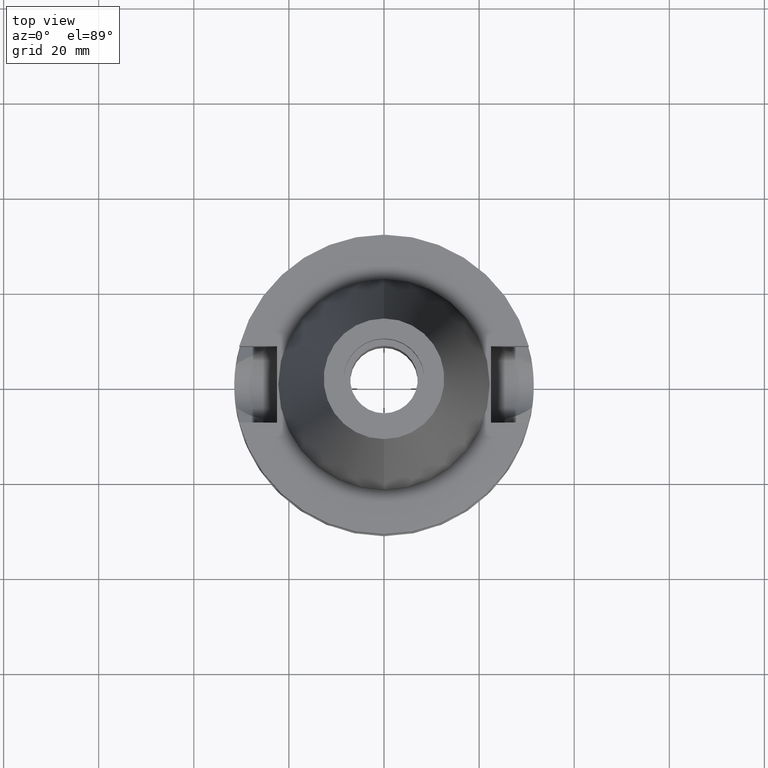
[diagram: clean part render]
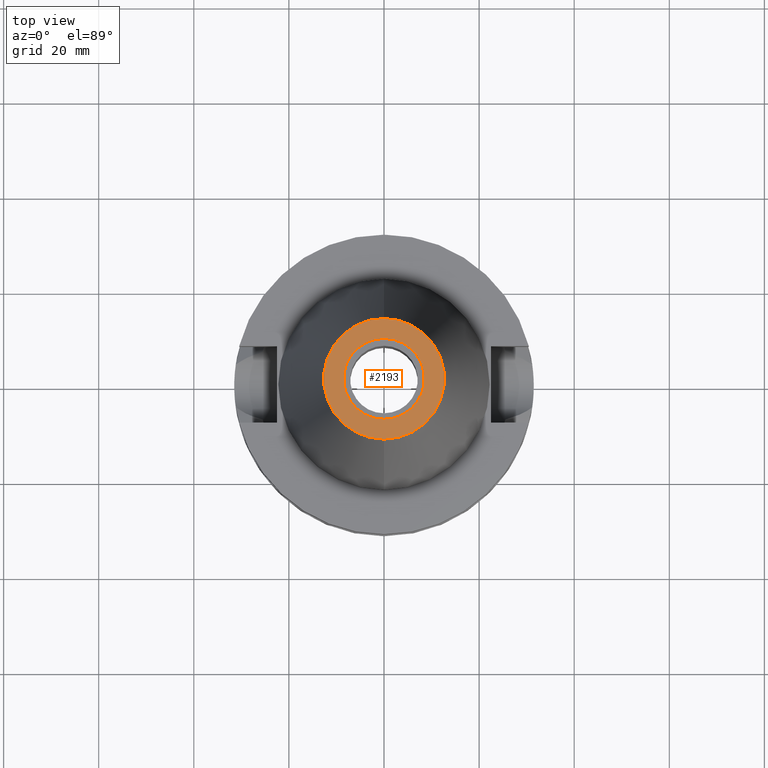
[diagram: same view with one face highlighted and labeled with its STEP entity id]
A machine part, top view. The second image highlights one B-rep face of the part: STEP entity #2193.
In plain terms, the highlighted planar face has unit normal (0, 0, -1).
Its self-contained STEP definition (entity closure, byte-faithful):
#23 = VERTEX_POINT ( 'NONE', #3404 ) ;
#126 = EDGE_LOOP ( 'NONE', ( #505, #273 ) ) ;
#141 = DIRECTION ( 'NONE',  ( 0.0000000000000000000, 0.0000000000000000000, 1.000000000000000000 ) ) ;
#273 = ORIENTED_EDGE ( 'NONE', *, *, #2684, .F. ) ;
#497 = DIRECTION ( 'NONE',  ( 0.0000000000000000000, 1.000000000000000000, 0.0000000000000000000 ) ) ;
#505 = ORIENTED_EDGE ( 'NONE', *, *, #3446, .F. ) ;
#594 = VERTEX_POINT ( 'NONE', #1735 ) ;
#744 = VERTEX_POINT ( 'NONE', #1337 ) ;
#818 = ORIENTED_EDGE ( 'NONE', *, *, #840, .F. ) ;
#840 = EDGE_CURVE ( 'NONE', #594, #1171, #1310, .T. ) ;
#850 = CARTESIAN_POINT ( 'NONE',  ( 0.0000000000000000000, 1.625106302469000024E-14, 65.40000000000000568 ) ) ;
#928 = EDGE_LOOP ( 'NONE', ( #3436, #818 ) ) ;
#1171 = VERTEX_POINT ( 'NONE', #2008 ) ;
#1178 = PLANE ( 'NONE',  #3497 ) ;
#1205 = CARTESIAN_POINT ( 'NONE',  ( 0.0000000000000000000, 2.097452572899999775E-14, 65.40000000000000568 ) ) ;
#1305 = DIRECTION ( 'NONE',  ( 0.0000000000000000000, 0.0000000000000000000, 1.000000000000000000 ) ) ;
#1310 = CIRCLE ( 'NONE', #2095, 12.68766899429999917 ) ;
#1337 = CARTESIAN_POINT ( 'NONE',  ( 0.0000000000000000000, 8.500000000000000000, 65.40000000000000568 ) ) ;
#1376 = AXIS2_PLACEMENT_3D ( 'NONE', #850, #1661, #2773 ) ;
#1456 = FACE_OUTER_BOUND ( 'NONE', #928, .T. ) ;
#1661 = DIRECTION ( 'NONE',  ( 0.0000000000000000000, 0.0000000000000000000, -1.000000000000000000 ) ) ;
#1735 = CARTESIAN_POINT ( 'NONE',  ( 0.0000000000000000000, -12.68766899429999917, 65.40000000000000568 ) ) ;
#1794 = CARTESIAN_POINT ( 'NONE',  ( 0.0000000000000000000, 2.025565805790000122E-14, 65.40000000000000568 ) ) ;
#2008 = CARTESIAN_POINT ( 'NONE',  ( 0.0000000000000000000, 12.68766899429999917, 65.40000000000000568 ) ) ;
#2084 = DIRECTION ( 'NONE',  ( 0.0000000000000000000, -1.000000000000000000, 0.0000000000000000000 ) ) ;
#2095 = AXIS2_PLACEMENT_3D ( 'NONE', #3535, #3521, #2659 ) ;
#2193 = ADVANCED_FACE ( 'NONE', ( #1456, #3367 ), #1178, .F. ) ;
#2263 = CIRCLE ( 'NONE', #3026, 8.500000000000000000 ) ;
#2463 = AXIS2_PLACEMENT_3D ( 'NONE', #3523, #1305, #497 ) ;
#2573 = DIRECTION ( 'NONE',  ( 0.0000000000000000000, -1.000000000000000000, 0.0000000000000000000 ) ) ;
#2659 = DIRECTION ( 'NONE',  ( 0.0000000000000000000, -1.000000000000000000, 0.0000000000000000000 ) ) ;
#2684 = EDGE_CURVE ( 'NONE', #23, #744, #2263, .T. ) ;
#2773 = DIRECTION ( 'NONE',  ( 0.0000000000000000000, 1.000000000000000000, 0.0000000000000000000 ) ) ;
#3026 = AXIS2_PLACEMENT_3D ( 'NONE', #1205, #141, #2573 ) ;
#3124 = EDGE_CURVE ( 'NONE', #1171, #594, #3217, .T. ) ;
#3217 = CIRCLE ( 'NONE', #1376, 12.68766899429999917 ) ;
#3350 = DIRECTION ( 'NONE',  ( 0.0000000000000000000, 0.0000000000000000000, -1.000000000000000000 ) ) ;
#3367 = FACE_BOUND ( 'NONE', #126, .T. ) ;
#3404 = CARTESIAN_POINT ( 'NONE',  ( 0.0000000000000000000, -8.500000000000000000, 65.40000000000000568 ) ) ;
#3436 = ORIENTED_EDGE ( 'NONE', *, *, #3124, .F. ) ;
#3446 = EDGE_CURVE ( 'NONE', #744, #23, #3464, .T. ) ;
#3464 = CIRCLE ( 'NONE', #2463, 8.500000000000000000 ) ;
#3497 = AXIS2_PLACEMENT_3D ( 'NONE', #1794, #3350, #2084 ) ;
#3521 = DIRECTION ( 'NONE',  ( 0.0000000000000000000, 0.0000000000000000000, -1.000000000000000000 ) ) ;
#3523 = CARTESIAN_POINT ( 'NONE',  ( 0.0000000000000000000, 2.097452572899999775E-14, 65.40000000000000568 ) ) ;
#3535 = CARTESIAN_POINT ( 'NONE',  ( 0.0000000000000000000, 1.625106302469000024E-14, 65.40000000000000568 ) ) ;